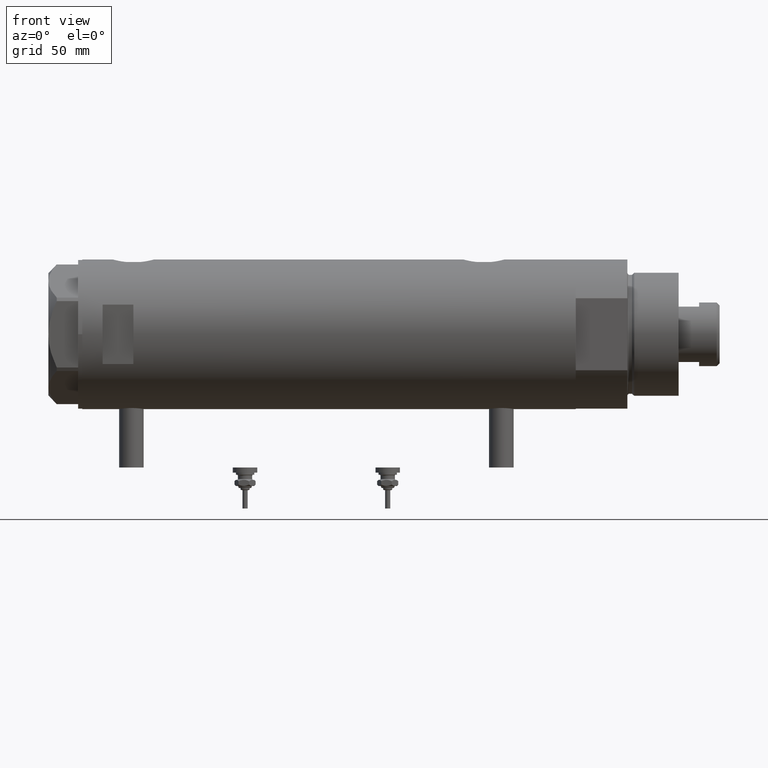
[diagram: clean part render]
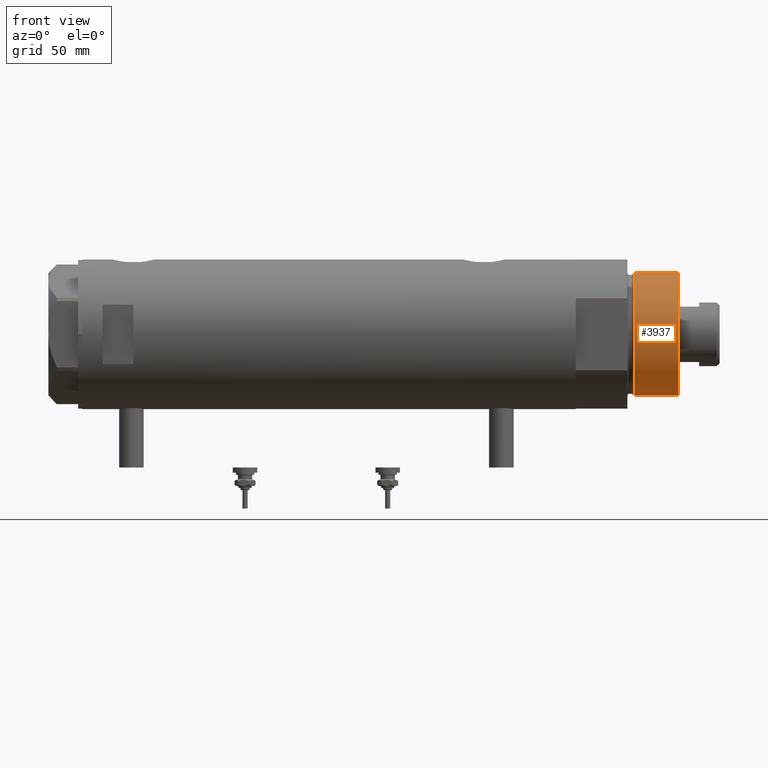
[diagram: same view with one face highlighted and labeled with its STEP entity id]
A machine part, front view. The second image highlights one B-rep face of the part: STEP entity #3937.
In plain terms, the highlighted cylindrical surface (partial cylindrical patch) has radius 30 mm, axis along (-1, -0, 0).
Its self-contained STEP definition (entity closure, byte-faithful):
#22 = VERTEX_POINT ( 'NONE', #4148 ) ;
#93 = CARTESIAN_POINT ( 'NONE',  ( -30.00000000000000000, 0.000000000000000000, 28.57384048104054486 ) ) ;
#105 = DIRECTION ( 'NONE',  ( 0.000000000000000000, 0.000000000000000000, 1.000000000000000000 ) ) ;
#112 = EDGE_CURVE ( 'NONE', #2058, #3079, #5764, .T. ) ;
#117 = AXIS2_PLACEMENT_3D ( 'NONE', #3222, #965, #3679 ) ;
#249 = DIRECTION ( 'NONE',  ( -0.000000000000000000, -0.000000000000000000, -1.000000000000000000 ) ) ;
#289 = ORIENTED_EDGE ( 'NONE', *, *, #112, .F. ) ;
#297 = AXIS2_PLACEMENT_3D ( 'NONE', #638, #105, #1035 ) ;
#356 = EDGE_CURVE ( 'NONE', #1774, #22, #1167, .T. ) ;
#463 = FACE_OUTER_BOUND ( 'NONE', #2368, .T. ) ;
#638 = CARTESIAN_POINT ( 'NONE',  ( 0.000000000000000000, 0.000000000000000000, 50.19999999999999574 ) ) ;
#664 = ORIENTED_EDGE ( 'NONE', *, *, #4270, .T. ) ;
#965 = DIRECTION ( 'NONE',  ( -0.000000000000000000, -0.000000000000000000, 1.000000000000000000 ) ) ;
#1035 = DIRECTION ( 'NONE',  ( 1.000000000000000000, 0.000000000000000000, 0.000000000000000000 ) ) ;
#1167 = CIRCLE ( 'NONE', #117, 30.00000000000000000 ) ;
#1217 = DIRECTION ( 'NONE',  ( -0.000000000000000000, -0.000000000000000000, -1.000000000000000000 ) ) ;
#1528 = LINE ( 'NONE', #4865, #5397 ) ;
#1774 = VERTEX_POINT ( 'NONE', #93 ) ;
#2058 = VERTEX_POINT ( 'NONE', #5222 ) ;
#2368 = EDGE_LOOP ( 'NONE', ( #3614, #289, #664, #4070 ) ) ;
#2674 = DIRECTION ( 'NONE',  ( -1.000000000000000000, 0.000000000000000000, 0.000000000000000000 ) ) ;
#2700 = AXIS2_PLACEMENT_3D ( 'NONE', #4985, #5426, #2674 ) ;
#2939 = EDGE_CURVE ( 'NONE', #3079, #22, #1528, .T. ) ;
#3079 = VERTEX_POINT ( 'NONE', #5927 ) ;
#3222 = CARTESIAN_POINT ( 'NONE',  ( 0.000000000000000000, 0.000000000000000000, 28.57384048104054486 ) ) ;
#3614 = ORIENTED_EDGE ( 'NONE', *, *, #2939, .F. ) ;
#3679 = DIRECTION ( 'NONE',  ( 1.000000000000000000, 0.000000000000000000, 0.000000000000000000 ) ) ;
#3937 = ADVANCED_FACE ( 'NONE', ( #463 ), #4150, .T. ) ;
#4070 = ORIENTED_EDGE ( 'NONE', *, *, #356, .T. ) ;
#4148 = CARTESIAN_POINT ( 'NONE',  ( 30.00000000000000000, 3.673940397442058389E-15, 28.57384048104054486 ) ) ;
#4150 = CYLINDRICAL_SURFACE ( 'NONE', #2700, 30.00000000000000000 ) ;
#4270 = EDGE_CURVE ( 'NONE', #2058, #1774, #4892, .T. ) ;
#4370 = VECTOR ( 'NONE', #1217, 1000.000000000000000 ) ;
#4442 = CARTESIAN_POINT ( 'NONE',  ( -30.00000000000000000, 0.000000000000000000, 50.19999999999999574 ) ) ;
#4865 = CARTESIAN_POINT ( 'NONE',  ( 30.00000000000000000, 3.673940397442058389E-15, 50.19999999999999574 ) ) ;
#4892 = LINE ( 'NONE', #4442, #4370 ) ;
#4985 = CARTESIAN_POINT ( 'NONE',  ( 0.000000000000000000, 0.000000000000000000, 50.19999999999999574 ) ) ;
#5222 = CARTESIAN_POINT ( 'NONE',  ( -30.00000000000000000, 0.000000000000000000, 50.19999999999999574 ) ) ;
#5397 = VECTOR ( 'NONE', #249, 1000.000000000000000 ) ;
#5426 = DIRECTION ( 'NONE',  ( -0.000000000000000000, -0.000000000000000000, -1.000000000000000000 ) ) ;
#5764 = CIRCLE ( 'NONE', #297, 30.00000000000000000 ) ;
#5927 = CARTESIAN_POINT ( 'NONE',  ( 30.00000000000000000, 3.673940397442058389E-15, 50.19999999999999574 ) ) ;